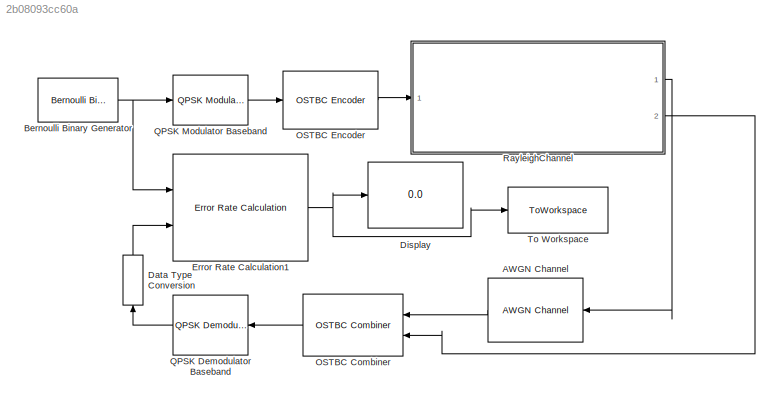
MODEL slx_2b08093cc60a
KIND model
CONFIG AbsTol = auto
CONFIG EnableMultiTasking = off
CONFIG FixedStep = auto
CONFIG MaxStep = auto
CONFIG MinStep = auto
CONFIG RelTol = 1e-3
CONFIG SampleTimeConstraint = Unconstrained
CONFIG Solver = VariableStepAuto
CONFIG SolverName = VariableStepAuto
CONFIG StartTime = 0.0
CONFIG StopTime = 10.0
WORKSPACE source: MAT-file member
WORKSPACE FrameLength = 100
BLOCK [Reference] AWGN Channel  REF=commchan3/AWGN
Channel
  Ports = [1, 1]
  SourceBlock = commchan3/AWGN\nChannel
  SourceProductBaseCode = CM
  SourceProductName = Communications System Toolbox
  SourceType = AWGN Channel
  UserDataPersistent = on
BLOCK [Reference] Bernoulli Binary Generator  REF=commrandsrc3/Bernoulli Binary
Generator
  Ports = [0, 1]
  SourceBlock = commrandsrc3/Bernoulli Binary\nGenerator
  SourceProductBaseCode = CM
  SourceProductName = Communications System Toolbox
  SourceType = Bernoulli Binary Generator
BLOCK [DataTypeConversion] Data Type Conversion
  OutDataTypeStr = boolean
  RndMeth = Floor
  SaturateOnIntegerOverflow = off
BLOCK [Display] Display
  Decimation = 1
  Ports = [1]
BLOCK [Reference] Error Rate Calculation1  REF=commsink2/Error Rate
Calculation
  Ports = [2, 1]
  SourceBlock = commsink2/Error Rate\nCalculation
  SourceProductBaseCode = CM
  SourceProductName = Communications System Toolbox
  SourceType = Error Rate Calculation
BLOCK [Reference] OSTBC Combiner  REF=commmimo/OSTBC Combiner
  Ports = [2, 1]
  SourceBlock = commmimo/OSTBC Combiner
  SourceProductBaseCode = CM
  SourceProductName = Communications System Toolbox
  SourceType = OSTBC Combiner
BLOCK [Reference] OSTBC Encoder  REF=commmimo/OSTBC Encoder
  Ports = [1, 1]
  SourceBlock = commmimo/OSTBC Encoder
  SourceProductBaseCode = CM
  SourceProductName = Communications System Toolbox
  SourceType = OSTBC Encoder
BLOCK [Reference] QPSK Demodulator Baseband  REF=commdigbbndpm3/QPSK
Demodulator
Baseband
  Ports = [1, 1]
  SourceBlock = commdigbbndpm3/QPSK\nDemodulator\nBaseband
  SourceProductBaseCode = CM
  SourceProductName = Communications System Toolbox
  SourceType = QPSK Demodulator Baseband
BLOCK [Reference] QPSK Modulator Baseband  REF=commdigbbndpm3/QPSK
Modulator
Baseband
  Ports = [1, 1]
  SourceBlock = commdigbbndpm3/QPSK\nModulator\nBaseband
  SourceProductBaseCode = CM
  SourceProductName = Communications System Toolbox
  SourceType = QPSK Modulator Baseband
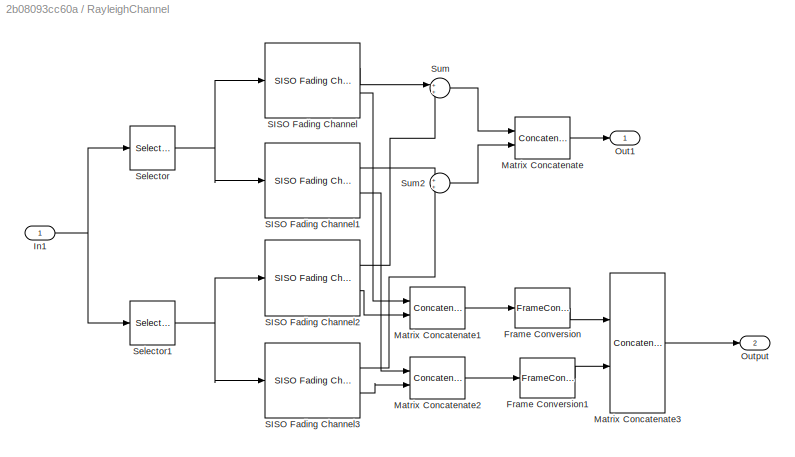
BLOCK [SubSystem] RayleighChannel
  Ports = [1, 2]
  RequestExecContextInheritance = off
BLOCK [FrameConversion] RayleighChannel/Frame Conversion
  OutFrame = Sample-based
  Ports = [1, 1]
BLOCK [FrameConversion] RayleighChannel/Frame Conversion1
  OutFrame = Sample-based
  Ports = [1, 1]
BLOCK [Inport] RayleighChannel/In1
  IconDisplay = Port number
BLOCK [Concatenate] RayleighChannel/Matrix Concatenate
  ConcatenateDimension = 2
  Mode = Multidimensional array
  Ports = [2, 1]
BLOCK [Concatenate] RayleighChannel/Matrix Concatenate1
  ConcatenateDimension = 2
  Mode = Multidimensional array
  Ports = [2, 1]
BLOCK [Concatenate] RayleighChannel/Matrix Concatenate2
  ConcatenateDimension = 2
  Mode = Multidimensional array
  Ports = [2, 1]
BLOCK [Concatenate] RayleighChannel/Matrix Concatenate3
  ConcatenateDimension = 3
  Mode = Multidimensional array
  Ports = [2, 1]
BLOCK [Outport] RayleighChannel/Out1
  IconDisplay = Port number
BLOCK [Outport] RayleighChannel/Output
  IconDisplay = Port number
  Port = 2
BLOCK [Reference] RayleighChannel/SISO Fading Channel  REF=commchan3/SISO Fading Channel
  Ports = [1, 2]
  SourceBlock = commchan3/SISO Fading Channel
  SourceProductBaseCode = CM
  SourceProductName = Communications System Toolbox
  SourceType = SISO Fading Channel
BLOCK [Reference] RayleighChannel/SISO Fading Channel1  REF=commchan3/SISO Fading Channel
  Ports = [1, 2]
  SourceBlock = commchan3/SISO Fading Channel
  SourceProductBaseCode = CM
  SourceProductName = Communications System Toolbox
  SourceType = SISO Fading Channel
BLOCK [Reference] RayleighChannel/SISO Fading Channel2  REF=commchan3/SISO Fading Channel
  Ports = [1, 2]
  SourceBlock = commchan3/SISO Fading Channel
  SourceProductBaseCode = CM
  SourceProductName = Communications System Toolbox
  SourceType = SISO Fading Channel
BLOCK [Reference] RayleighChannel/SISO Fading Channel3  REF=commchan3/SISO Fading Channel
  Ports = [1, 2]
  SourceBlock = commchan3/SISO Fading Channel
  SourceProductBaseCode = CM
  SourceProductName = Communications System Toolbox
  SourceType = SISO Fading Channel
BLOCK [Selector] RayleighChannel/Selector
  IndexOptions = Select all,Index vector (dialog)
  Indices = [1 3],1
  InputPortWidth = 3
  NumberOfDimensions = 2
  OutputSizes = 1,1
  Ports = [1, 1]
BLOCK [Selector] RayleighChannel/Selector1
  IndexOptions = Select all,Index vector (dialog)
  Indices = [1 3],2
  InputPortWidth = 3
  NumberOfDimensions = 2
  OutputSizes = 1,1
  Ports = [1, 1]
BLOCK [Sum] RayleighChannel/Sum
  IconShape = round
  InputSameDT = off
  OutDataTypeStr = Inherit: Inherit via internal rule
  Ports = [2, 1]
  SaturateOnIntegerOverflow = off
BLOCK [Sum] RayleighChannel/Sum2
  IconShape = round
  InputSameDT = off
  OutDataTypeStr = Inherit: Inherit via internal rule
  Ports = [2, 1]
  SaturateOnIntegerOverflow = off
BLOCK [ToWorkspace] To Workspace
  MaxDataPoints = 1
  Ports = [1]
  SampleTime = -1
  Save2DSignal = 2-D array (concatenate along first dimension)
  VariableName = BER_OSTBC_22_QPSK
LINE AWGN Channel:1 -> OSTBC Combiner:1
NET Bernoulli Binary Generator:1 -> Error Rate Calculation1:1, QPSK Modulator Baseband:1
LINE Data Type Conversion:1 -> Error Rate Calculation1:2
NET Error Rate Calculation1:1 -> Display:1, To Workspace:1
LINE OSTBC Combiner:1 -> QPSK Demodulator Baseband:1
LINE OSTBC Encoder:1 -> RayleighChannel:1
LINE QPSK Demodulator Baseband:1 -> Data Type Conversion:1
LINE QPSK Modulator Baseband:1 -> OSTBC Encoder:1
LINE RayleighChannel/Frame Conversion1:1 -> RayleighChannel/Matrix Concatenate3:2
LINE RayleighChannel/Frame Conversion:1 -> RayleighChannel/Matrix Concatenate3:1
NET RayleighChannel/In1:1 -> RayleighChannel/Selector1:1, RayleighChannel/Selector:1
LINE RayleighChannel/Matrix Concatenate1:1 -> RayleighChannel/Frame Conversion:1
LINE RayleighChannel/Matrix Concatenate2:1 -> RayleighChannel/Frame Conversion1:1
LINE RayleighChannel/Matrix Concatenate3:1 -> RayleighChannel/Output:1
LINE RayleighChannel/Matrix Concatenate:1 -> RayleighChannel/Out1:1
LINE RayleighChannel/SISO Fading Channel1:1 -> RayleighChannel/Sum2:1
LINE RayleighChannel/SISO Fading Channel1:2 -> RayleighChannel/Matrix Concatenate2:1
LINE RayleighChannel/SISO Fading Channel2:1 -> RayleighChannel/Sum:2
LINE RayleighChannel/SISO Fading Channel2:2 -> RayleighChannel/Matrix Concatenate1:2
LINE RayleighChannel/SISO Fading Channel3:1 -> RayleighChannel/Sum2:2
LINE RayleighChannel/SISO Fading Channel3:2 -> RayleighChannel/Matrix Concatenate2:2
LINE RayleighChannel/SISO Fading Channel:1 -> RayleighChannel/Sum:1
LINE RayleighChannel/SISO Fading Channel:2 -> RayleighChannel/Matrix Concatenate1:1
NET RayleighChannel/Selector1:1 -> RayleighChannel/SISO Fading Channel2:1, RayleighChannel/SISO Fading Channel3:1
NET RayleighChannel/Selector:1 -> RayleighChannel/SISO Fading Channel1:1, RayleighChannel/SISO Fading Channel:1
LINE RayleighChannel/Sum2:1 -> RayleighChannel/Matrix Concatenate:2
LINE RayleighChannel/Sum:1 -> RayleighChannel/Matrix Concatenate:1
LINE RayleighChannel:1 -> AWGN Channel:1
LINE RayleighChannel:2 -> OSTBC Combiner:2
note: NET lines group one-source signal fan-out (src -> all destinations, sorted); 1:1 wires keep LINE
